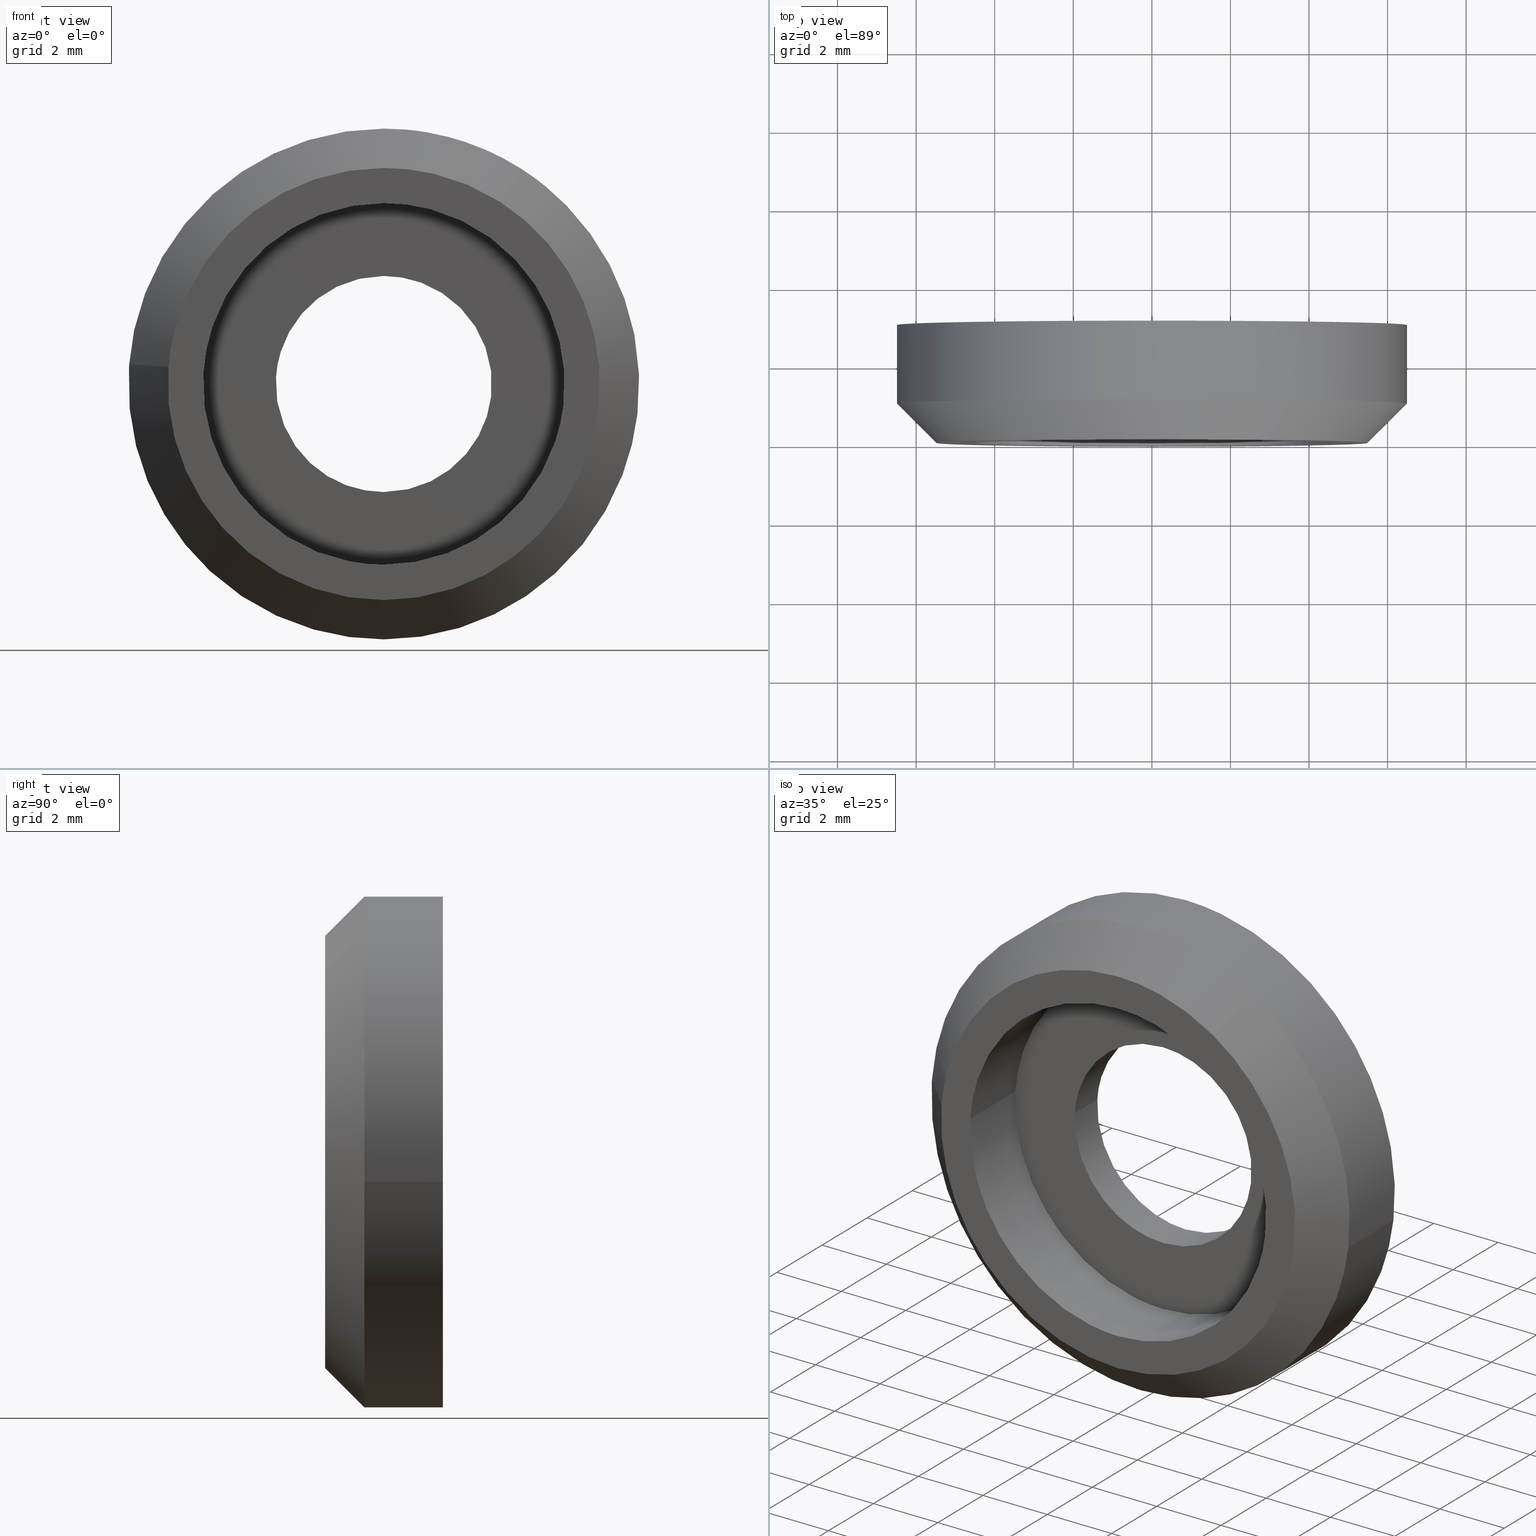
[diagram: canonical four-view strip — front | top / right | iso, engineering-drawing reading convention]
A machine part, canonical four-view strip (front | top / right | iso — engineering-drawing reading convention). The complete STEP part file that produces these views, byte-faithful:
ISO-10303-21;
HEADER;
/****************************************************************
 * Generated by software with PDE/Lib inside                    *
 * PDElib Version 4.4.1-0003, patched  Thursday August 19 11:58 *
 * International Technegroup Inc. (www.iti-oh.com)              *
 ****************************************************************/
FILE_DESCRIPTION((''),'2;1');
FILE_NAME('','2005-10-12T11:50:00',(''),(''),'','CADfix','');
FILE_SCHEMA(('AUTOMOTIVE_DESIGN'));
ENDSEC;
DATA;
#5=APPLICATION_CONTEXT('automotive design');
#6=APPLICATION_PROTOCOL_DEFINITION('Draft International Standard','automotive_design',1998,#5);
#7=PRODUCT_CONTEXT('None',#5,'mechanical');
#8=PRODUCT('facing ring','','None',(#7));
#9=PRODUCT_RELATED_PRODUCT_CATEGORY('part','description',(#8));
#10=PRODUCT_DEFINITION_FORMATION('None','None',#8);
#11=PRODUCT_DEFINITION_CONTEXT('part definition',#5,'design');
#12=PRODUCT_DEFINITION('None','None',#10,#11);
#18=(NAMED_UNIT(*)PLANE_ANGLE_UNIT()SI_UNIT($,.RADIAN.));
#19=DIMENSIONAL_EXPONENTS(0.0,0.0,0.0,0.0,0.0,0.0,0.0);
#20=PLANE_ANGLE_MEASURE_WITH_UNIT(PLANE_ANGLE_MEASURE(0.017453292500000),#18);
#24=(CONVERSION_BASED_UNIT('DEGREE',#20)NAMED_UNIT(#19)PLANE_ANGLE_UNIT());
#28=(NAMED_UNIT(*)SI_UNIT($,.STERADIAN.)SOLID_ANGLE_UNIT());
#32=(LENGTH_UNIT()NAMED_UNIT(*)SI_UNIT(.MILLI.,.METRE.));
#34=UNCERTAINTY_MEASURE_WITH_UNIT(LENGTH_MEASURE(0.001000000000000),#32,'DISTANCE_ACCURACY_VALUE','');
#36=(GEOMETRIC_REPRESENTATION_CONTEXT(3)GLOBAL_UNCERTAINTY_ASSIGNED_CONTEXT((#34))GLOBAL_UNIT_ASSIGNED_CONTEXT((#24,#28,#32))REPRESENTATION_CONTEXT('None','None'));
#37=AXIS2_PLACEMENT_3D('',#38,#39,#40);
#38=CARTESIAN_POINT('',(0.0,0.0,0.0));
#39=DIRECTION('',(0.0,0.0,1.0));
#40=DIRECTION('',(1.0,0.0,0.0));
#41=ADVANCED_BREP_SHAPE_REPRESENTATION('',(#37,#815),#36);
#42=PRODUCT_DEFINITION_SHAPE('','',#12);
#43=SHAPE_DEFINITION_REPRESENTATION(#42,#41);
#44=CARTESIAN_POINT('',(4.567843821272867,0.050000000000000,-0.542957479421089));
#45=CARTESIAN_POINT('',(4.583383031063587,0.050000000000000,-0.412227751734697));
#46=CARTESIAN_POINT('',(4.591420072740588,0.050000000000000,-0.280823281860342));
#47=CARTESIAN_POINT('',(4.872243354600929,0.050000000000000,4.310596790880246));
#48=CARTESIAN_POINT('',(0.280823281860343,0.050000000000000,4.591420072740587));
#49=CARTESIAN_POINT('',(-4.310596790880244,0.050000000000000,4.872243354600929));
#50=CARTESIAN_POINT('',(-4.591420072740586,0.050000000000000,0.280823281860342));
#51=CARTESIAN_POINT('',(4.567843821272867,-2.051250000000001,-0.542957479421089));
#52=CARTESIAN_POINT('',(4.583383031063587,-2.051250000000000,-0.412227751734697));
#53=CARTESIAN_POINT('',(4.591420072740588,-2.051250000000000,-0.280823281860342));
#54=CARTESIAN_POINT('',(4.872243354600929,-2.051250000000001,4.310596790880246));
#55=CARTESIAN_POINT('',(0.280823281860343,-2.051250000000000,4.591420072740587));
#56=CARTESIAN_POINT('',(-4.310596790880244,-2.051250000000001,4.872243354600929));
#57=CARTESIAN_POINT('',(-4.591420072740586,-2.051250000000000,0.280823281860342));
#65=(BOUNDED_SURFACE()B_SPLINE_SURFACE(2,1,((#44,#51),(#45,#52),(#46,#53),(#47,#54),(#48,#55),(#49,#56),(#50,#57)),.UNSPECIFIED.,.F.,.F.,.U.)B_SPLINE_SURFACE_WITH_KNOTS((3,2,2,3),(2,2),(0.0,0.304861181906598,7.926390729571546,15.547920277236489),(0.0,2.101250000000000),.UNSPECIFIED.)GEOMETRIC_REPRESENTATION_ITEM()RATIONAL_B_SPLINE_SURFACE(((0.977505800795127,0.977505800795127),(0.988284271247462,0.988284271247462),(1.0,1.0),(0.707106781186548,0.707106781186548),(1.0,1.0),(0.707106781186548,0.707106781186548),(1.0,1.0)))REPRESENTATION_ITEM('')SURFACE());
#66=CARTESIAN_POINT('',(4.567843924772339,-3.194357E-015,-0.542956608689565));
#67=VERTEX_POINT('',#66);
#68=CARTESIAN_POINT('',(4.898425E-016,0.0,4.600000000000000));
#69=VERTEX_POINT('',#68);
#70=CARTESIAN_POINT('',(4.567843924772339,-3.194357E-015,-0.542956608689565));
#71=CARTESIAN_POINT('',(4.600000000000001,0.0,-0.272430070462030));
#72=CARTESIAN_POINT('',(4.600000000000001,0.0,0.0));
#73=CARTESIAN_POINT('',(4.600000000000001,0.0,4.600000000000000));
#74=CARTESIAN_POINT('',(4.898425E-016,0.0,4.600000000000000));
#82=(BOUNDED_CURVE()B_SPLINE_CURVE(2,(#70,#71,#72,#73,#74),.UNSPECIFIED.,.F.,.U.)B_SPLINE_CURVE_WITH_KNOTS((3,2,3),(0.229562537947122,0.250000000000000,0.500000000000000),.UNSPECIFIED.)CURVE()GEOMETRIC_REPRESENTATION_ITEM()RATIONAL_B_SPLINE_CURVE((0.956026880476258,0.976056023819819,1.0,0.707106781186547,1.0))REPRESENTATION_ITEM(''));
#83=EDGE_CURVE('',#67,#69,#82,.T.);
#84=ORIENTED_EDGE('',*,*,#83,.F.);
#85=CARTESIAN_POINT('',(4.567843923526642,-2.0,-0.542956619169509));
#86=VERTEX_POINT('',#85);
#87=CARTESIAN_POINT('',(4.567843924772339,-3.194357E-015,-0.542956608689565));
#88=CARTESIAN_POINT('',(4.567843923526642,-2.0,-0.542956619169509));
#89=QUASI_UNIFORM_CURVE('',1,(#87,#88),.UNSPECIFIED.,.F.,.U.);
#90=EDGE_CURVE('',#67,#86,#89,.T.);
#91=ORIENTED_EDGE('',*,*,#90,.T.);
#92=CARTESIAN_POINT('',(4.898425E-016,-2.0,4.600000000000000));
#93=VERTEX_POINT('',#92);
#94=CARTESIAN_POINT('',(4.567843923526642,-2.000000000000000,-0.542956619169509));
#95=CARTESIAN_POINT('',(4.600000000000000,-2.000000000000000,-0.272430081052766));
#96=CARTESIAN_POINT('',(4.600000000000001,-2.0,0.0));
#97=CARTESIAN_POINT('',(4.600000000000001,-2.0,4.600000000000000));
#98=CARTESIAN_POINT('',(4.898425E-016,-2.0,4.600000000000000));
#106=(BOUNDED_CURVE()B_SPLINE_CURVE(2,(#94,#95,#96,#97,#98),.UNSPECIFIED.,.F.,.U.)B_SPLINE_CURVE_WITH_KNOTS((3,2,3),(0.229562537171638,0.250000000000000,0.500000000000000),.UNSPECIFIED.)CURVE()GEOMETRIC_REPRESENTATION_ITEM()RATIONAL_B_SPLINE_CURVE((0.956026878956277,0.976056022911283,1.0,0.707106781186547,1.0))REPRESENTATION_ITEM(''));
#107=EDGE_CURVE('',#86,#93,#106,.T.);
#108=ORIENTED_EDGE('',*,*,#107,.T.);
#109=CARTESIAN_POINT('',(-4.591420351980636,-2.0,0.280818716251385));
#110=VERTEX_POINT('',#109);
#111=CARTESIAN_POINT('',(4.898425E-016,-2.0,4.600000000000000));
#112=CARTESIAN_POINT('',(-4.327252218730626,-2.0,4.600000000000000));
#113=CARTESIAN_POINT('',(-4.591420351980636,-2.000000000000000,0.280818716251385));
#121=(BOUNDED_CURVE()B_SPLINE_CURVE(2,(#111,#112,#113),.UNSPECIFIED.,.F.,.U.)B_SPLINE_CURVE_WITH_KNOTS((3,3),(0.500000000000000,0.739333133818792),.UNSPECIFIED.)CURVE()GEOMETRIC_REPRESENTATION_ITEM()RATIONAL_B_SPLINE_CURVE((1.0,0.719603792268414,0.976072409395271))REPRESENTATION_ITEM(''));
#122=EDGE_CURVE('',#93,#110,#121,.T.);
#123=ORIENTED_EDGE('',*,*,#122,.T.);
#124=CARTESIAN_POINT('',(-4.591420355385287,-1.392636E-014,0.280818660584011));
#125=VERTEX_POINT('',#124);
#126=CARTESIAN_POINT('',(-4.591420355385287,-1.392636E-014,0.280818660584011));
#127=CARTESIAN_POINT('',(-4.591420351980636,-2.0,0.280818716251385));
#128=QUASI_UNIFORM_CURVE('',1,(#126,#127),.UNSPECIFIED.,.F.,.U.);
#129=EDGE_CURVE('',#125,#110,#128,.T.);
#130=ORIENTED_EDGE('',*,*,#129,.F.);
#131=CARTESIAN_POINT('',(4.898425E-016,0.0,4.600000000000000));
#132=CARTESIAN_POINT('',(-4.327252271293201,0.0,4.599999999999999));
#133=CARTESIAN_POINT('',(-4.591420355385287,-1.392636E-014,0.280818660584011));
#141=(BOUNDED_CURVE()B_SPLINE_CURVE(2,(#131,#132,#133),.UNSPECIFIED.,.F.,.U.)B_SPLINE_CURVE_WITH_KNOTS((3,3),(0.500000000000000,0.739333135910787),.UNSPECIFIED.)CURVE()GEOMETRIC_REPRESENTATION_ITEM()RATIONAL_B_SPLINE_CURVE((1.0,0.719603789817489,0.976072413878821))REPRESENTATION_ITEM(''));
#142=EDGE_CURVE('',#69,#125,#141,.T.);
#143=ORIENTED_EDGE('',*,*,#142,.F.);
#144=EDGE_LOOP('',(#84,#91,#108,#123,#130,#143));
#145=FACE_OUTER_BOUND('',#144,.T.);
#146=ADVANCED_FACE('',(#145),#65,.F.);
#147=CARTESIAN_POINT('',(-4.591420072740586,0.050000000000000,0.280823281860342));
#148=CARTESIAN_POINT('',(-4.872243354600928,0.050000000000000,-4.310596790880246));
#149=CARTESIAN_POINT('',(-0.280823281860342,0.050000000000000,-4.591420072740587));
#150=CARTESIAN_POINT('',(4.055100057861706,0.050000000000000,-4.856616504969625));
#151=CARTESIAN_POINT('',(4.567843821272867,0.050000000000000,-0.542957479421089));
#152=CARTESIAN_POINT('',(-4.591420072740586,-2.051250000000000,0.280823281860342));
#153=CARTESIAN_POINT('',(-4.872243354600928,-2.051250000000001,-4.310596790880246));
#154=CARTESIAN_POINT('',(-0.280823281860342,-2.051250000000000,-4.591420072740587));
#155=CARTESIAN_POINT('',(4.055100057861706,-2.051250000000001,-4.856616504969625));
#156=CARTESIAN_POINT('',(4.567843821272867,-2.051250000000001,-0.542957479421089));
#164=(BOUNDED_SURFACE()B_SPLINE_SURFACE(2,1,((#147,#152),(#148,#153),(#149,#154),(#150,#155),(#151,#156)),.UNSPECIFIED.,.F.,.F.,.U.)B_SPLINE_SURFACE_WITH_KNOTS((3,2,3),(2,2),(0.0,7.621529547664948,14.938197913423300),(0.0,2.101250000000000),.UNSPECIFIED.)GEOMETRIC_REPRESENTATION_ITEM()RATIONAL_B_SPLINE_SURFACE(((1.0,1.0),(0.707106781186548,0.707106781186548),(1.0,1.0),(0.718822509939086,0.718822509939086),(0.977505800795127,0.977505800795127)))REPRESENTATION_ITEM('')SURFACE());
#165=CARTESIAN_POINT('',(4.898425E-016,0.0,-4.600000000000000));
#166=VERTEX_POINT('',#165);
#167=CARTESIAN_POINT('',(4.898425E-016,0.0,-4.600000000000000));
#168=CARTESIAN_POINT('',(4.085604387953177,0.0,-4.599999999999999));
#169=CARTESIAN_POINT('',(4.567843924772339,-3.194357E-015,-0.542956608689565));
#177=(BOUNDED_CURVE()B_SPLINE_CURVE(2,(#167,#168,#169),.UNSPECIFIED.,.F.,.U.)B_SPLINE_CURVE_WITH_KNOTS((3,3),(0.0,0.229562537947122),.UNSPECIFIED.)CURVE()GEOMETRIC_REPRESENTATION_ITEM()RATIONAL_B_SPLINE_CURVE((1.0,0.731050757366728,0.956026880476258))REPRESENTATION_ITEM(''));
#178=EDGE_CURVE('',#166,#67,#177,.T.);
#179=ORIENTED_EDGE('',*,*,#178,.F.);
#180=CARTESIAN_POINT('',(-4.591420355385287,-1.392636E-014,0.280818660584011));
#181=CARTESIAN_POINT('',(-4.599999999999999,0.0,0.140540394056717));
#182=CARTESIAN_POINT('',(-4.599999999999999,0.0,0.0));
#183=CARTESIAN_POINT('',(-4.600000000000000,0.0,-4.600000000000000));
#184=CARTESIAN_POINT('',(4.898425E-016,0.0,-4.600000000000000));
#192=(BOUNDED_CURVE()B_SPLINE_CURVE(2,(#180,#181,#182,#183,#184),.UNSPECIFIED.,.F.,.U.)B_SPLINE_CURVE_WITH_KNOTS((3,2,3),(0.739333135910787,0.750000000000000,1.0),.UNSPECIFIED.)CURVE()GEOMETRIC_REPRESENTATION_ITEM()RATIONAL_B_SPLINE_CURVE((0.976072413878821,0.987502991369059,1.0,0.707106781186547,1.0))REPRESENTATION_ITEM(''));
#193=EDGE_CURVE('',#125,#166,#192,.T.);
#194=ORIENTED_EDGE('',*,*,#193,.F.);
#195=ORIENTED_EDGE('',*,*,#129,.T.);
#196=CARTESIAN_POINT('',(4.898425E-016,-2.0,-4.600000000000000));
#197=VERTEX_POINT('',#196);
#198=CARTESIAN_POINT('',(-4.591420351980636,-2.000000000000000,0.280818716251385));
#199=CARTESIAN_POINT('',(-4.599999999999999,-2.000000000000000,0.140540421968442));
#200=CARTESIAN_POINT('',(-4.599999999999999,-2.0,0.0));
#201=CARTESIAN_POINT('',(-4.600000000000000,-2.0,-4.600000000000000));
#202=CARTESIAN_POINT('',(4.898425E-016,-2.0,-4.600000000000000));
#210=(BOUNDED_CURVE()B_SPLINE_CURVE(2,(#198,#199,#200,#201,#202),.UNSPECIFIED.,.F.,.U.)B_SPLINE_CURVE_WITH_KNOTS((3,2,3),(0.739333133818792,0.750000000000000,1.0),.UNSPECIFIED.)CURVE()GEOMETRIC_REPRESENTATION_ITEM()RATIONAL_B_SPLINE_CURVE((0.976072409395271,0.987502988918134,1.0,0.707106781186547,1.0))REPRESENTATION_ITEM(''));
#211=EDGE_CURVE('',#110,#197,#210,.T.);
#212=ORIENTED_EDGE('',*,*,#211,.T.);
#213=CARTESIAN_POINT('',(4.898425E-016,-2.0,-4.600000000000000));
#214=CARTESIAN_POINT('',(4.085604369074106,-1.999999999999999,-4.600000000000000));
#215=CARTESIAN_POINT('',(4.567843923526642,-2.000000000000000,-0.542956619169509));
#223=(BOUNDED_CURVE()B_SPLINE_CURVE(2,(#213,#214,#215),.UNSPECIFIED.,.F.,.U.)B_SPLINE_CURVE_WITH_KNOTS((3,3),(0.0,0.229562537171638),.UNSPECIFIED.)CURVE()GEOMETRIC_REPRESENTATION_ITEM()RATIONAL_B_SPLINE_CURVE((1.0,0.731050758275264,0.956026878956277))REPRESENTATION_ITEM(''));
#224=EDGE_CURVE('',#197,#86,#223,.T.);
#225=ORIENTED_EDGE('',*,*,#224,.T.);
#226=ORIENTED_EDGE('',*,*,#90,.F.);
#227=EDGE_LOOP('',(#179,#194,#195,#212,#225,#226));
#228=FACE_OUTER_BOUND('',#227,.T.);
#229=ADVANCED_FACE('',(#228),#164,.F.);
#230=CARTESIAN_POINT('',(2.944733094117965,-2.025000000000000,4.615644267532583));
#231=CARTESIAN_POINT('',(5.716039175441344,-2.025000000000000,2.847579776729467));
#232=CARTESIAN_POINT('',(5.458122402188874,-2.025000000000000,-0.429563549109954));
#233=CARTESIAN_POINT('',(5.028558853078919,-2.025000000000000,-5.887685951298828));
#234=CARTESIAN_POINT('',(-0.429563549109954,-2.025000000000000,-5.458122402188873));
#235=CARTESIAN_POINT('',(-5.887685951298825,-2.025000000000000,-5.028558853078919));
#236=CARTESIAN_POINT('',(-5.458122402188872,-2.025000000000000,0.429563549109954));
#237=CARTESIAN_POINT('',(3.509812583982383,-0.974375000000000,5.501363218870742));
#238=CARTESIAN_POINT('',(6.812918382509483,-0.974375000000000,3.394016032971731));
#239=CARTESIAN_POINT('',(6.505508675942241,-0.974375000000000,-0.511994636559022));
#240=CARTESIAN_POINT('',(5.993514039383219,-0.974375000000000,-7.017503312501262));
#241=CARTESIAN_POINT('',(-0.511994636559021,-0.974375000000000,-6.505508675942240));
#242=CARTESIAN_POINT('',(-7.017503312501262,-0.974375000000000,-5.993514039383218));
#243=CARTESIAN_POINT('',(-6.505508675942239,-0.974375000000000,0.511994636559022));
#251=(BOUNDED_SURFACE()B_SPLINE_SURFACE(2,1,((#230,#237),(#231,#238),(#232,#239),(#233,#240),(#234,#241),(#235,#242),(#236,#243)),.UNSPECIFIED.,.F.,.F.,.U.)B_SPLINE_SURFACE_WITH_KNOTS((3,2,2,3),(2,2),(0.0,7.352166468053720,18.164175979897429,28.976185491741131),(0.0,1.0),.UNSPECIFIED.)GEOMETRIC_REPRESENTATION_ITEM()RATIONAL_B_SPLINE_SURFACE(((0.872532871172386,0.872532871172386),(0.800832611206852,0.800832611206852),(1.0,1.0),(0.707106781186548,0.707106781186548),(1.0,1.0),(0.707106781186548,0.707106781186548),(1.0,1.0)))REPRESENTATION_ITEM('')SURFACE());
#252=CARTESIAN_POINT('',(6.454562409925407,-0.999999999999979,-0.767218415029761));
#253=VERTEX_POINT('',#252);
#254=CARTESIAN_POINT('',(3.496030157401222,-0.999999999999946,5.479760317618087));
#255=VERTEX_POINT('',#254);
#256=CARTESIAN_POINT('',(6.454562409925407,-0.999999999999979,-0.767218415029761));
#257=CARTESIAN_POINT('',(6.500000000000002,-1.0,-0.384954700891566));
#258=CARTESIAN_POINT('',(6.500000000000001,-1.0,0.0));
#259=CARTESIAN_POINT('',(6.500000000000002,-1.0,3.563258764094281));
#260=CARTESIAN_POINT('',(3.496030157401222,-0.999999999999946,5.479760317618087));
#268=(BOUNDED_CURVE()B_SPLINE_CURVE(2,(#256,#257,#258,#259,#260),.UNSPECIFIED.,.F.,.U.)B_SPLINE_CURVE_WITH_KNOTS((3,2,3),(0.229562581136241,0.250000000000000,0.407950112627521),.UNSPECIFIED.)CURVE()GEOMETRIC_REPRESENTATION_ITEM()RATIONAL_B_SPLINE_CURVE((0.956026965128767,0.976056074419019,1.0,0.814949932402312,0.863729296954906))REPRESENTATION_ITEM(''));
#269=EDGE_CURVE('',#253,#255,#268,.T.);
#270=ORIENTED_EDGE('',*,*,#269,.T.);
#271=CARTESIAN_POINT('',(2.958179363957607,-1.999999999999788,4.636720268752224));
#272=VERTEX_POINT('',#271);
#273=CARTESIAN_POINT('',(2.958179363957607,-1.999999999999788,4.636720268752224));
#274=CARTESIAN_POINT('',(3.496030157401222,-0.999999999999946,5.479760317618087));
#275=QUASI_UNIFORM_CURVE('',1,(#273,#274),.UNSPECIFIED.,.F.,.U.);
#276=EDGE_CURVE('',#272,#255,#275,.T.);
#277=ORIENTED_EDGE('',*,*,#276,.F.);
#278=CARTESIAN_POINT('',(4.898425E-016,-2.0,-5.500000000000000));
#279=VERTEX_POINT('',#278);
#280=CARTESIAN_POINT('',(4.898425E-016,-2.0,-5.500000000000000));
#281=CARTESIAN_POINT('',(5.500000000000001,-2.000000000000000,-5.500000000000001));
#282=CARTESIAN_POINT('',(5.500000000000001,-2.0,0.0));
#283=CARTESIAN_POINT('',(5.500000000000000,-2.000000000000000,3.015065108075712));
#284=CARTESIAN_POINT('',(2.958179363957608,-1.999999999999788,4.636720268752226));
#292=(BOUNDED_CURVE()B_SPLINE_CURVE(2,(#280,#281,#282,#283,#284),.UNSPECIFIED.,.F.,.U.)B_SPLINE_CURVE_WITH_KNOTS((3,2,3),(0.0,0.250000000000000,0.407950112627348),.UNSPECIFIED.)CURVE()GEOMETRIC_REPRESENTATION_ITEM()RATIONAL_B_SPLINE_CURVE((1.0,0.707106781186548,1.0,0.814949932402515,0.863729296954799))REPRESENTATION_ITEM(''));
#293=EDGE_CURVE('',#279,#272,#292,.T.);
#294=ORIENTED_EDGE('',*,*,#293,.F.);
#295=CARTESIAN_POINT('',(-5.483045335532477,-1.999999999999305,0.431525026508502));
#296=VERTEX_POINT('',#295);
#297=CARTESIAN_POINT('',(-5.483045335532477,-1.999999999999305,0.431525026508502));
#298=CARTESIAN_POINT('',(-5.499999999999999,-2.000000000000000,0.216095588547506));
#299=CARTESIAN_POINT('',(-5.499999999999999,-2.0,0.0));
#300=CARTESIAN_POINT('',(-5.499999999999999,-2.000000000000000,-5.500000000000001));
#301=CARTESIAN_POINT('',(4.898425E-016,-2.0,-5.500000000000000));
#309=(BOUNDED_CURVE()B_SPLINE_CURVE(2,(#297,#298,#299,#300,#301),.UNSPECIFIED.,.F.,.U.)B_SPLINE_CURVE_WITH_KNOTS((3,2,3),(0.736331300632436,0.750000000000000,1.0),.UNSPECIFIED.)CURVE()GEOMETRIC_REPRESENTATION_ITEM()RATIONAL_B_SPLINE_CURVE((0.969723356171124,0.983986122580963,1.0,0.707106781186548,1.0))REPRESENTATION_ITEM(''));
#310=EDGE_CURVE('',#296,#279,#309,.T.);
#311=ORIENTED_EDGE('',*,*,#310,.F.);
#312=CARTESIAN_POINT('',(-6.479962669265479,-0.999999999999622,0.509984122233905));
#313=VERTEX_POINT('',#312);
#314=CARTESIAN_POINT('',(-5.483045335532477,-1.999999999999305,0.431525026508502));
#315=CARTESIAN_POINT('',(-6.479962669265479,-0.999999999999622,0.509984122233905));
#316=QUASI_UNIFORM_CURVE('',1,(#314,#315),.UNSPECIFIED.,.F.,.U.);
#317=EDGE_CURVE('',#296,#313,#316,.T.);
#318=ORIENTED_EDGE('',*,*,#317,.T.);
#319=CARTESIAN_POINT('',(-6.487876331741011,-0.999999999999986,0.396813185301808));
#320=VERTEX_POINT('',#319);
#321=CARTESIAN_POINT('',(-6.479962669265479,-0.999999999999622,0.509984122233905));
#322=CARTESIAN_POINT('',(-6.484413324530644,-1.0,0.453433185220409));
#323=CARTESIAN_POINT('',(-6.487876331741011,-0.999999999999986,0.396813185301808));
#331=(BOUNDED_CURVE()B_SPLINE_CURVE(2,(#321,#322,#323),.UNSPECIFIED.,.F.,.U.)B_SPLINE_CURVE_WITH_KNOTS((3,3),(0.736331300632614,0.739333023987528),.UNSPECIFIED.)CURVE()GEOMETRIC_REPRESENTATION_ITEM()RATIONAL_B_SPLINE_CURVE((0.969723356171498,0.972855539994323,0.976072174005725))REPRESENTATION_ITEM(''));
#332=EDGE_CURVE('',#313,#320,#331,.T.);
#333=ORIENTED_EDGE('',*,*,#332,.T.);
#334=CARTESIAN_POINT('',(4.898425E-016,-1.0,-6.500000000000000));
#335=VERTEX_POINT('',#334);
#336=CARTESIAN_POINT('',(-6.487876331741011,-0.999999999999986,0.396813185301808));
#337=CARTESIAN_POINT('',(-6.499999999999999,-1.0,0.198591797348603));
#338=CARTESIAN_POINT('',(-6.499999999999999,-1.0,0.0));
#339=CARTESIAN_POINT('',(-6.499999999999998,-1.0,-6.500000000000000));
#340=CARTESIAN_POINT('',(4.898425E-016,-1.0,-6.500000000000000));
#348=(BOUNDED_CURVE()B_SPLINE_CURVE(2,(#336,#337,#338,#339,#340),.UNSPECIFIED.,.F.,.U.)B_SPLINE_CURVE_WITH_KNOTS((3,2,3),(0.739333023987528,0.750000000000000,1.0),.UNSPECIFIED.)CURVE()GEOMETRIC_REPRESENTATION_ITEM()RATIONAL_B_SPLINE_CURVE((0.976072174005725,0.987502860242805,1.0,0.707106781186547,1.0))REPRESENTATION_ITEM(''));
#349=EDGE_CURVE('',#320,#335,#348,.T.);
#350=ORIENTED_EDGE('',*,*,#349,.T.);
#351=CARTESIAN_POINT('',(4.898425E-016,-1.0,-6.500000000000000));
#352=CARTESIAN_POINT('',(5.773138120873576,-1.0,-6.500000000000000));
#353=CARTESIAN_POINT('',(6.454562409925407,-0.999999999999979,-0.767218415029761));
#361=(BOUNDED_CURVE()B_SPLINE_CURVE(2,(#351,#352,#353),.UNSPECIFIED.,.F.,.U.)B_SPLINE_CURVE_WITH_KNOTS((3,3),(0.0,0.229562581136241),.UNSPECIFIED.)CURVE()GEOMETRIC_REPRESENTATION_ITEM()RATIONAL_B_SPLINE_CURVE((1.0,0.731050706767529,0.956026965128767))REPRESENTATION_ITEM(''));
#362=EDGE_CURVE('',#335,#253,#361,.T.);
#363=ORIENTED_EDGE('',*,*,#362,.T.);
#364=EDGE_LOOP('',(#270,#277,#294,#311,#318,#333,#350,#363));
#365=FACE_OUTER_BOUND('',#364,.T.);
#366=ADVANCED_FACE('',(#365),#251,.T.);
#367=CARTESIAN_POINT('',(-5.458122402188872,-2.025000000000000,0.429563549109954));
#368=CARTESIAN_POINT('',(-5.028558853078918,-2.025000000000000,5.887685951298828));
#369=CARTESIAN_POINT('',(0.429563549109955,-2.025000000000000,5.458122402188873));
#370=CARTESIAN_POINT('',(1.792321263180675,-2.024999999999999,5.350871044103091));
#371=CARTESIAN_POINT('',(2.944733094117965,-2.025000000000000,4.615644267532583));
#372=CARTESIAN_POINT('',(-6.505508675942239,-0.974375000000000,0.511994636559022));
#373=CARTESIAN_POINT('',(-5.993514039383216,-0.974375000000000,7.017503312501262));
#374=CARTESIAN_POINT('',(0.511994636559022,-0.974375000000000,6.505508675942240));
#375=CARTESIAN_POINT('',(2.136258711058153,-0.974375000000000,6.377676320945247));
#376=CARTESIAN_POINT('',(3.509812583982383,-0.974375000000000,5.501363218870742));
#384=(BOUNDED_SURFACE()B_SPLINE_SURFACE(2,1,((#367,#372),(#368,#373),(#369,#374),(#370,#375),(#371,#376)),.UNSPECIFIED.,.F.,.F.,.U.)B_SPLINE_SURFACE_WITH_KNOTS((3,2,3),(2,2),(0.0,10.812009511843710,14.271852555633700),(0.0,1.0),.UNSPECIFIED.)GEOMETRIC_REPRESENTATION_ITEM()RATIONAL_B_SPLINE_SURFACE(((1.0,1.0),(0.707106781186548,0.707106781186548),(1.0,1.0),(0.906274169979695,0.906274169979695),(0.872532871172386,0.872532871172386)))REPRESENTATION_ITEM('')SURFACE());
#385=CARTESIAN_POINT('',(4.898425E-016,-1.0,6.500000000000000));
#386=VERTEX_POINT('',#385);
#387=CARTESIAN_POINT('',(3.496030157401223,-0.999999999999946,5.479760317618088));
#388=CARTESIAN_POINT('',(1.896882359966342,-1.0,6.500000000000000));
#389=CARTESIAN_POINT('',(4.898425E-016,-1.0,6.500000000000000));
#397=(BOUNDED_CURVE()B_SPLINE_CURVE(2,(#387,#388,#389),.UNSPECIFIED.,.F.,.U.)B_SPLINE_CURVE_WITH_KNOTS((3,3),(0.407950112627522,0.500000000000000),.UNSPECIFIED.)CURVE()GEOMETRIC_REPRESENTATION_ITEM()RATIONAL_B_SPLINE_CURVE((0.863729296954906,0.892156848784236,1.0))REPRESENTATION_ITEM(''));
#398=EDGE_CURVE('',#255,#386,#397,.T.);
#399=ORIENTED_EDGE('',*,*,#398,.T.);
#400=CARTESIAN_POINT('',(4.898425E-016,-1.0,6.500000000000000));
#401=CARTESIAN_POINT('',(-6.008538195773006,-1.0,6.500000000000000));
#402=CARTESIAN_POINT('',(-6.479962669265479,-0.999999999999622,0.509984122233905));
#410=(BOUNDED_CURVE()B_SPLINE_CURVE(2,(#400,#401,#402),.UNSPECIFIED.,.F.,.U.)B_SPLINE_CURVE_WITH_KNOTS((3,3),(0.500000000000000,0.736331300632615),.UNSPECIFIED.)CURVE()GEOMETRIC_REPRESENTATION_ITEM()RATIONAL_B_SPLINE_CURVE((1.0,0.723120658605375,0.969723356171499))REPRESENTATION_ITEM(''));
#411=EDGE_CURVE('',#386,#313,#410,.T.);
#412=ORIENTED_EDGE('',*,*,#411,.T.);
#413=ORIENTED_EDGE('',*,*,#317,.F.);
#414=CARTESIAN_POINT('',(4.898425E-016,-2.0,5.500000000000000));
#415=VERTEX_POINT('',#414);
#416=CARTESIAN_POINT('',(4.898425E-016,-2.0,5.500000000000000));
#417=CARTESIAN_POINT('',(-5.084147704110269,-2.000000000000000,5.499999999999999));
#418=CARTESIAN_POINT('',(-5.483045335532477,-1.999999999999304,0.431525026508502));
#426=(BOUNDED_CURVE()B_SPLINE_CURVE(2,(#416,#417,#418),.UNSPECIFIED.,.F.,.U.)B_SPLINE_CURVE_WITH_KNOTS((3,3),(0.500000000000000,0.736331300632435),.UNSPECIFIED.)CURVE()GEOMETRIC_REPRESENTATION_ITEM()RATIONAL_B_SPLINE_CURVE((1.0,0.723120658605585,0.969723356171123))REPRESENTATION_ITEM(''));
#427=EDGE_CURVE('',#415,#296,#426,.T.);
#428=ORIENTED_EDGE('',*,*,#427,.F.);
#429=CARTESIAN_POINT('',(2.958179363957608,-1.999999999999788,4.636720268752226));
#430=CARTESIAN_POINT('',(1.605054304590299,-2.0,5.500000000000001));
#431=CARTESIAN_POINT('',(4.898425E-016,-2.0,5.500000000000000));
#439=(BOUNDED_CURVE()B_SPLINE_CURVE(2,(#429,#430,#431),.UNSPECIFIED.,.F.,.U.)B_SPLINE_CURVE_WITH_KNOTS((3,3),(0.407950112627348,0.500000000000000),.UNSPECIFIED.)CURVE()GEOMETRIC_REPRESENTATION_ITEM()RATIONAL_B_SPLINE_CURVE((0.863729296954799,0.892156848784032,1.0))REPRESENTATION_ITEM(''));
#440=EDGE_CURVE('',#272,#415,#439,.T.);
#441=ORIENTED_EDGE('',*,*,#440,.F.);
#442=ORIENTED_EDGE('',*,*,#276,.T.);
#443=EDGE_LOOP('',(#399,#412,#413,#428,#441,#442));
#444=FACE_OUTER_BOUND('',#443,.T.);
#445=ADVANCED_FACE('',(#444),#384,.T.);
#446=CARTESIAN_POINT('',(6.454561921363832,1.050000000000000,-0.767222525268930));
#447=CARTESIAN_POINT('',(6.476519500415937,1.050000000000000,-0.582495736146855));
#448=CARTESIAN_POINT('',(6.487876189742134,1.050000000000000,-0.396815506976570));
#449=CARTESIAN_POINT('',(6.884691696718705,1.050000000000000,6.091060682765563));
#450=CARTESIAN_POINT('',(0.396815506976571,1.050000000000000,6.487876189742133));
#451=CARTESIAN_POINT('',(-6.091060682765561,1.050000000000000,6.884691696718703));
#452=CARTESIAN_POINT('',(-6.487876189742132,1.050000000000000,0.396815506976570));
#453=CARTESIAN_POINT('',(6.454561921363832,-1.051250000000000,-0.767222525268930));
#454=CARTESIAN_POINT('',(6.476519500415937,-1.051250000000000,-0.582495736146855));
#455=CARTESIAN_POINT('',(6.487876189742134,-1.051250000000000,-0.396815506976570));
#456=CARTESIAN_POINT('',(6.884691696718705,-1.051250000000000,6.091060682765563));
#457=CARTESIAN_POINT('',(0.396815506976571,-1.051250000000000,6.487876189742133));
#458=CARTESIAN_POINT('',(-6.091060682765561,-1.051250000000000,6.884691696718703));
#459=CARTESIAN_POINT('',(-6.487876189742132,-1.051250000000000,0.396815506976570));
#467=(BOUNDED_SURFACE()B_SPLINE_SURFACE(2,1,((#446,#453),(#447,#454),(#448,#455),(#449,#456),(#450,#457),(#451,#458),(#452,#459)),.UNSPECIFIED.,.F.,.F.,.U.)B_SPLINE_SURFACE_WITH_KNOTS((3,2,2,3),(2,2),(0.0,0.430782104868019,11.200334726568490,21.969887348268959),(0.0,2.101250000000000),.UNSPECIFIED.)GEOMETRIC_REPRESENTATION_ITEM()RATIONAL_B_SPLINE_SURFACE(((0.977505800795127,0.977505800795127),(0.988284271247462,0.988284271247462),(1.0,1.0),(0.707106781186548,0.707106781186548),(1.0,1.0),(0.707106781186548,0.707106781186548),(1.0,1.0)))REPRESENTATION_ITEM('')SURFACE());
#468=ORIENTED_EDGE('',*,*,#269,.F.);
#469=CARTESIAN_POINT('',(6.454562403899240,1.000000000000000,-0.767218465727815));
#470=VERTEX_POINT('',#469);
#471=CARTESIAN_POINT('',(6.454562403899240,1.000000000000000,-0.767218465727815));
#472=CARTESIAN_POINT('',(6.454562409925407,-0.999999999999979,-0.767218415029761));
#473=QUASI_UNIFORM_CURVE('',1,(#471,#472),.UNSPECIFIED.,.F.,.U.);
#474=EDGE_CURVE('',#470,#253,#473,.T.);
#475=ORIENTED_EDGE('',*,*,#474,.F.);
#476=CARTESIAN_POINT('',(4.898425E-016,1.0,6.500000000000000));
#477=VERTEX_POINT('',#476);
#478=CARTESIAN_POINT('',(6.454562403899240,1.000000000000000,-0.767218465727815));
#479=CARTESIAN_POINT('',(6.500000000000001,1.0,-0.384954726508574));
#480=CARTESIAN_POINT('',(6.500000000000001,1.0,0.0));
#481=CARTESIAN_POINT('',(6.500000000000000,1.0,6.500000000000000));
#482=CARTESIAN_POINT('',(4.898425E-016,1.0,6.500000000000000));
#490=(BOUNDED_CURVE()B_SPLINE_CURVE(2,(#478,#479,#480,#481,#482),.UNSPECIFIED.,.F.,.U.)B_SPLINE_CURVE_WITH_KNOTS((3,2,3),(0.229562579808786,0.250000000000000,0.500000000000000),.UNSPECIFIED.)CURVE()GEOMETRIC_REPRESENTATION_ITEM()RATIONAL_B_SPLINE_CURVE((0.956026962526900,0.976056072863809,1.0,0.707106781186547,1.0))REPRESENTATION_ITEM(''));
#491=EDGE_CURVE('',#470,#477,#490,.T.);
#492=ORIENTED_EDGE('',*,*,#491,.T.);
#493=CARTESIAN_POINT('',(-6.487876329990308,1.0,0.396813213925880));
#494=VERTEX_POINT('',#493);
#495=CARTESIAN_POINT('',(4.898425E-016,1.0,6.500000000000000));
#496=CARTESIAN_POINT('',(-6.114591600043400,1.0,6.500000000000000));
#497=CARTESIAN_POINT('',(-6.487876329990309,1.0,0.396813213925880));
#505=(BOUNDED_CURVE()B_SPLINE_CURVE(2,(#495,#496,#497),.UNSPECIFIED.,.F.,.U.)B_SPLINE_CURVE_WITH_KNOTS((3,3),(0.500000000000000,0.739333023226263),.UNSPECIFIED.)CURVE()GEOMETRIC_REPRESENTATION_ITEM()RATIONAL_B_SPLINE_CURVE((1.0,0.719603921835620,0.976072172374189))REPRESENTATION_ITEM(''));
#506=EDGE_CURVE('',#477,#494,#505,.T.);
#507=ORIENTED_EDGE('',*,*,#506,.T.);
#508=CARTESIAN_POINT('',(-6.487876329990308,1.0,0.396813213925880));
#509=CARTESIAN_POINT('',(-6.487876331741011,-0.999999999999986,0.396813185301808));
#510=QUASI_UNIFORM_CURVE('',1,(#508,#509),.UNSPECIFIED.,.F.,.U.);
#511=EDGE_CURVE('',#494,#320,#510,.T.);
#512=ORIENTED_EDGE('',*,*,#511,.T.);
#513=ORIENTED_EDGE('',*,*,#332,.F.);
#514=ORIENTED_EDGE('',*,*,#411,.F.);
#515=ORIENTED_EDGE('',*,*,#398,.F.);
#516=EDGE_LOOP('',(#468,#475,#492,#507,#512,#513,#514,#515));
#517=FACE_OUTER_BOUND('',#516,.T.);
#518=ADVANCED_FACE('',(#517),#467,.T.);
#519=CARTESIAN_POINT('',(-6.487876189742132,1.050000000000000,0.396815506976570));
#520=CARTESIAN_POINT('',(-6.884691696718702,1.050000000000000,-6.091060682765563));
#521=CARTESIAN_POINT('',(-0.396815506976570,1.050000000000000,-6.487876189742133));
#522=CARTESIAN_POINT('',(5.730032690456757,1.050000000000000,-6.862610278761427));
#523=CARTESIAN_POINT('',(6.454561921363832,1.050000000000000,-0.767222525268930));
#524=CARTESIAN_POINT('',(-6.487876189742132,-1.051250000000000,0.396815506976570));
#525=CARTESIAN_POINT('',(-6.884691696718702,-1.051250000000000,-6.091060682765563));
#526=CARTESIAN_POINT('',(-0.396815506976570,-1.051250000000000,-6.487876189742133));
#527=CARTESIAN_POINT('',(5.730032690456757,-1.051250000000000,-6.862610278761427));
#528=CARTESIAN_POINT('',(6.454561921363832,-1.051250000000000,-0.767222525268930));
#536=(BOUNDED_SURFACE()B_SPLINE_SURFACE(2,1,((#519,#524),(#520,#525),(#521,#526),(#522,#527),(#523,#528)),.UNSPECIFIED.,.F.,.F.,.U.)B_SPLINE_SURFACE_WITH_KNOTS((3,2,3),(2,2),(0.0,10.769552621700470,21.108323138532910),(0.0,2.101250000000000),.UNSPECIFIED.)GEOMETRIC_REPRESENTATION_ITEM()RATIONAL_B_SPLINE_SURFACE(((1.0,1.0),(0.707106781186548,0.707106781186548),(1.0,1.0),(0.718822509939086,0.718822509939086),(0.977505800795127,0.977505800795127)))REPRESENTATION_ITEM('')SURFACE());
#537=ORIENTED_EDGE('',*,*,#362,.F.);
#538=ORIENTED_EDGE('',*,*,#349,.F.);
#539=ORIENTED_EDGE('',*,*,#511,.F.);
#540=CARTESIAN_POINT('',(4.898425E-016,1.0,-6.500000000000000));
#541=VERTEX_POINT('',#540);
#542=CARTESIAN_POINT('',(-6.487876329990309,1.0,0.396813213925880));
#543=CARTESIAN_POINT('',(-6.499999999999998,1.0,0.198591811700768));
#544=CARTESIAN_POINT('',(-6.499999999999999,1.0,0.0));
#545=CARTESIAN_POINT('',(-6.499999999999998,1.0,-6.500000000000000));
#546=CARTESIAN_POINT('',(4.898425E-016,1.0,-6.500000000000000));
#554=(BOUNDED_CURVE()B_SPLINE_CURVE(2,(#542,#543,#544,#545,#546),.UNSPECIFIED.,.F.,.U.)B_SPLINE_CURVE_WITH_KNOTS((3,2,3),(0.739333023226263,0.750000000000000,1.0),.UNSPECIFIED.)CURVE()GEOMETRIC_REPRESENTATION_ITEM()RATIONAL_B_SPLINE_CURVE((0.976072172374189,0.987502859350927,1.0,0.707106781186547,1.0))REPRESENTATION_ITEM(''));
#555=EDGE_CURVE('',#494,#541,#554,.T.);
#556=ORIENTED_EDGE('',*,*,#555,.T.);
#557=CARTESIAN_POINT('',(4.898425E-016,1.0,-6.500000000000000));
#558=CARTESIAN_POINT('',(5.773138075208631,1.0,-6.500000000000001));
#559=CARTESIAN_POINT('',(6.454562403899240,1.000000000000000,-0.767218465727815));
#567=(BOUNDED_CURVE()B_SPLINE_CURVE(2,(#557,#558,#559),.UNSPECIFIED.,.F.,.U.)B_SPLINE_CURVE_WITH_KNOTS((3,3),(0.0,0.229562579808786),.UNSPECIFIED.)CURVE()GEOMETRIC_REPRESENTATION_ITEM()RATIONAL_B_SPLINE_CURVE((1.0,0.731050708322738,0.956026962526900))REPRESENTATION_ITEM(''));
#568=EDGE_CURVE('',#541,#470,#567,.T.);
#569=ORIENTED_EDGE('',*,*,#568,.T.);
#570=ORIENTED_EDGE('',*,*,#474,.T.);
#571=EDGE_LOOP('',(#537,#538,#539,#556,#569,#570));
#572=FACE_OUTER_BOUND('',#571,.T.);
#573=ADVANCED_FACE('',(#572),#536,.T.);
#574=CARTESIAN_POINT('',(2.730776197500084,1.025000000000000,-0.324594145306086));
#575=CARTESIAN_POINT('',(2.740065942483667,1.025000000000000,-0.246440503754439));
#576=CARTESIAN_POINT('',(2.744870695660134,1.025000000000000,-0.167883483720857));
#577=CARTESIAN_POINT('',(2.912754179380990,1.025000000000000,2.576987211939278));
#578=CARTESIAN_POINT('',(0.167883483720857,1.025000000000000,2.744870695660134));
#579=CARTESIAN_POINT('',(-2.576987211939278,1.025000000000000,2.912754179380990));
#580=CARTESIAN_POINT('',(-2.744870695660133,1.025000000000000,0.167883483720857));
#581=CARTESIAN_POINT('',(2.730776197500084,-0.025625000000000,-0.324594145306086));
#582=CARTESIAN_POINT('',(2.740065942483667,-0.025625000000000,-0.246440503754439));
#583=CARTESIAN_POINT('',(2.744870695660134,-0.025625000000000,-0.167883483720857));
#584=CARTESIAN_POINT('',(2.912754179380990,-0.025625000000000,2.576987211939278));
#585=CARTESIAN_POINT('',(0.167883483720857,-0.025625000000000,2.744870695660134));
#586=CARTESIAN_POINT('',(-2.576987211939278,-0.025625000000000,2.912754179380990));
#587=CARTESIAN_POINT('',(-2.744870695660133,-0.025625000000000,0.167883483720857));
#595=(BOUNDED_SURFACE()B_SPLINE_SURFACE(2,1,((#574,#581),(#575,#582),(#576,#583),(#577,#584),(#578,#585),(#579,#586),(#580,#587)),.UNSPECIFIED.,.F.,.F.,.U.)B_SPLINE_SURFACE_WITH_KNOTS((3,2,2,3),(2,2),(0.0,0.182253967444162,4.738603153548208,9.294952339652255),(0.0,1.0),.UNSPECIFIED.)GEOMETRIC_REPRESENTATION_ITEM()RATIONAL_B_SPLINE_SURFACE(((0.977505800795127,0.977505800795127),(0.988284271247462,0.988284271247462),(1.0,1.0),(0.707106781186548,0.707106781186548),(1.0,1.0),(0.707106781186548,0.707106781186548),(1.0,1.0)))REPRESENTATION_ITEM('')SURFACE());
#596=CARTESIAN_POINT('',(2.730776319682042,-1.124946E-014,-0.324593117398889));
#597=VERTEX_POINT('',#596);
#598=CARTESIAN_POINT('',(4.898425E-016,0.0,2.750000000000000));
#599=VERTEX_POINT('',#598);
#600=CARTESIAN_POINT('',(2.730776319682042,-1.124946E-014,-0.324593117398889));
#601=CARTESIAN_POINT('',(2.750000000000000,0.0,-0.162865809655731));
#602=CARTESIAN_POINT('',(2.750000000000000,0.0,0.0));
#603=CARTESIAN_POINT('',(2.750000000000000,0.0,2.750000000000000));
#604=CARTESIAN_POINT('',(4.898425E-016,0.0,2.750000000000000));
#612=(BOUNDED_CURVE()B_SPLINE_CURVE(2,(#600,#601,#602,#603,#604),.UNSPECIFIED.,.F.,.U.)B_SPLINE_CURVE_WITH_KNOTS((3,2,3),(0.229562537131132,0.250000000000000,0.500000000000000),.UNSPECIFIED.)CURVE()GEOMETRIC_REPRESENTATION_ITEM()RATIONAL_B_SPLINE_CURVE((0.956026878876884,0.976056022863828,1.0,0.707106781186548,1.0))REPRESENTATION_ITEM(''));
#613=EDGE_CURVE('',#597,#599,#612,.T.);
#614=ORIENTED_EDGE('',*,*,#613,.T.);
#615=CARTESIAN_POINT('',(-2.744870927625979,6.940802E-014,0.167879691026804));
#616=VERTEX_POINT('',#615);
#617=CARTESIAN_POINT('',(4.898425E-016,0.0,2.750000000000000));
#618=CARTESIAN_POINT('',(-2.586945265149691,0.0,2.750000000000001));
#619=CARTESIAN_POINT('',(-2.744870927625979,6.940802E-014,0.167879691026804));
#627=(BOUNDED_CURVE()B_SPLINE_CURVE(2,(#617,#618,#619),.UNSPECIFIED.,.F.,.U.)B_SPLINE_CURVE_WITH_KNOTS((3,3),(0.500000000000000,0.739333200656587),.UNSPECIFIED.)CURVE()GEOMETRIC_REPRESENTATION_ITEM()RATIONAL_B_SPLINE_CURVE((1.0,0.719603713963066,0.976072552641646))REPRESENTATION_ITEM(''));
#628=EDGE_CURVE('',#599,#616,#627,.T.);
#629=ORIENTED_EDGE('',*,*,#628,.T.);
#630=CARTESIAN_POINT('',(-2.744870924766029,1.0,0.167879737788683));
#631=VERTEX_POINT('',#630);
#632=CARTESIAN_POINT('',(-2.744870924766029,1.0,0.167879737788683));
#633=CARTESIAN_POINT('',(-2.744870927625979,6.940802E-014,0.167879691026804));
#634=QUASI_UNIFORM_CURVE('',1,(#632,#633),.UNSPECIFIED.,.F.,.U.);
#635=EDGE_CURVE('',#631,#616,#634,.T.);
#636=ORIENTED_EDGE('',*,*,#635,.F.);
#637=CARTESIAN_POINT('',(4.898425E-016,1.0,2.750000000000000));
#638=VERTEX_POINT('',#637);
#639=CARTESIAN_POINT('',(4.898425E-016,1.0,2.750000000000000));
#640=CARTESIAN_POINT('',(-2.586945220995899,1.0,2.749999999999999));
#641=CARTESIAN_POINT('',(-2.744870924766029,1.0,0.167879737788683));
#649=(BOUNDED_CURVE()B_SPLINE_CURVE(2,(#639,#640,#641),.UNSPECIFIED.,.F.,.U.)B_SPLINE_CURVE_WITH_KNOTS((3,3),(0.500000000000000,0.739333197717062),.UNSPECIFIED.)CURVE()GEOMETRIC_REPRESENTATION_ITEM()RATIONAL_B_SPLINE_CURVE((1.0,0.719603717406933,0.976072546341672))REPRESENTATION_ITEM(''));
#650=EDGE_CURVE('',#638,#631,#649,.T.);
#651=ORIENTED_EDGE('',*,*,#650,.F.);
#652=CARTESIAN_POINT('',(2.730776318172569,1.0,-0.324593130098012));
#653=VERTEX_POINT('',#652);
#654=CARTESIAN_POINT('',(2.730776318172569,1.0,-0.324593130098012));
#655=CARTESIAN_POINT('',(2.750000000000000,1.0,-0.162865816072419));
#656=CARTESIAN_POINT('',(2.750000000000000,1.0,0.0));
#657=CARTESIAN_POINT('',(2.750000000000000,1.0,2.750000000000000));
#658=CARTESIAN_POINT('',(4.898425E-016,1.0,2.750000000000000));
#666=(BOUNDED_CURVE()B_SPLINE_CURVE(2,(#654,#655,#656,#657,#658),.UNSPECIFIED.,.F.,.U.)B_SPLINE_CURVE_WITH_KNOTS((3,2,3),(0.229562536345204,0.250000000000000,0.500000000000000),.UNSPECIFIED.)CURVE()GEOMETRIC_REPRESENTATION_ITEM()RATIONAL_B_SPLINE_CURVE((0.956026877336432,0.976056021943056,1.0,0.707106781186548,1.0))REPRESENTATION_ITEM(''));
#667=EDGE_CURVE('',#653,#638,#666,.T.);
#668=ORIENTED_EDGE('',*,*,#667,.F.);
#669=CARTESIAN_POINT('',(2.730776318172569,1.0,-0.324593130098012));
#670=CARTESIAN_POINT('',(2.730776319682042,-1.124946E-014,-0.324593117398889));
#671=QUASI_UNIFORM_CURVE('',1,(#669,#670),.UNSPECIFIED.,.F.,.U.);
#672=EDGE_CURVE('',#653,#597,#671,.T.);
#673=ORIENTED_EDGE('',*,*,#672,.T.);
#674=EDGE_LOOP('',(#614,#629,#636,#651,#668,#673));
#675=FACE_OUTER_BOUND('',#674,.T.);
#676=ADVANCED_FACE('',(#675),#595,.F.);
#677=CARTESIAN_POINT('',(-2.744870695660133,1.025000000000000,0.167883483720857));
#678=CARTESIAN_POINT('',(-2.912754179380989,1.025000000000000,-2.576987211939278));
#679=CARTESIAN_POINT('',(-0.167883483720856,1.025000000000000,-2.744870695660134));
#680=CARTESIAN_POINT('',(2.424244599808629,1.025000000000000,-2.903412041014450));
#681=CARTESIAN_POINT('',(2.730776197500084,1.025000000000000,-0.324594145306086));
#682=CARTESIAN_POINT('',(-2.744870695660133,-0.025625000000000,0.167883483720857));
#683=CARTESIAN_POINT('',(-2.912754179380989,-0.025625000000000,-2.576987211939278));
#684=CARTESIAN_POINT('',(-0.167883483720856,-0.025625000000000,-2.744870695660134));
#685=CARTESIAN_POINT('',(2.424244599808629,-0.025625000000000,-2.903412041014450));
#686=CARTESIAN_POINT('',(2.730776197500084,-0.025625000000000,-0.324594145306086));
#694=(BOUNDED_SURFACE()B_SPLINE_SURFACE(2,1,((#677,#682),(#678,#683),(#679,#684),(#680,#685),(#681,#686)),.UNSPECIFIED.,.F.,.F.,.U.)B_SPLINE_SURFACE_WITH_KNOTS((3,2,3),(2,2),(0.0,4.556349186104045,8.930444404763927),(0.0,1.0),.UNSPECIFIED.)GEOMETRIC_REPRESENTATION_ITEM()RATIONAL_B_SPLINE_SURFACE(((1.0,1.0),(0.707106781186548,0.707106781186548),(1.0,1.0),(0.718822509939086,0.718822509939086),(0.977505800795127,0.977505800795127)))REPRESENTATION_ITEM('')SURFACE());
#695=CARTESIAN_POINT('',(4.898425E-016,0.0,-2.750000000000000));
#696=VERTEX_POINT('',#695);
#697=CARTESIAN_POINT('',(4.898425E-016,0.0,-2.750000000000000));
#698=CARTESIAN_POINT('',(2.442480872226521,0.0,-2.749999999999999));
#699=CARTESIAN_POINT('',(2.730776319682042,-1.124946E-014,-0.324593117398889));
#707=(BOUNDED_CURVE()B_SPLINE_CURVE(2,(#697,#698,#699),.UNSPECIFIED.,.F.,.U.)B_SPLINE_CURVE_WITH_KNOTS((3,3),(0.0,0.229562537131132),.UNSPECIFIED.)CURVE()GEOMETRIC_REPRESENTATION_ITEM()RATIONAL_B_SPLINE_CURVE((1.0,0.731050758322720,0.956026878876884))REPRESENTATION_ITEM(''));
#708=EDGE_CURVE('',#696,#597,#707,.T.);
#709=ORIENTED_EDGE('',*,*,#708,.T.);
#710=ORIENTED_EDGE('',*,*,#672,.F.);
#711=CARTESIAN_POINT('',(4.898425E-016,1.0,-2.750000000000000));
#712=VERTEX_POINT('',#711);
#713=CARTESIAN_POINT('',(4.898425E-016,1.0,-2.750000000000000));
#714=CARTESIAN_POINT('',(2.442480860788119,1.0,-2.750000000000000));
#715=CARTESIAN_POINT('',(2.730776318172569,1.0,-0.324593130098012));
#723=(BOUNDED_CURVE()B_SPLINE_CURVE(2,(#713,#714,#715),.UNSPECIFIED.,.F.,.U.)B_SPLINE_CURVE_WITH_KNOTS((3,3),(0.0,0.229562536345204),.UNSPECIFIED.)CURVE()GEOMETRIC_REPRESENTATION_ITEM()RATIONAL_B_SPLINE_CURVE((1.0,0.731050759243492,0.956026877336432))REPRESENTATION_ITEM(''));
#724=EDGE_CURVE('',#712,#653,#723,.T.);
#725=ORIENTED_EDGE('',*,*,#724,.F.);
#726=CARTESIAN_POINT('',(-2.744870924766029,1.0,0.167879737788683));
#727=CARTESIAN_POINT('',(-2.750000000000000,1.0,0.084018220853614));
#728=CARTESIAN_POINT('',(-2.750000000000000,1.0,0.0));
#729=CARTESIAN_POINT('',(-2.749999999999999,1.0,-2.750000000000000));
#730=CARTESIAN_POINT('',(4.898425E-016,1.0,-2.750000000000000));
#738=(BOUNDED_CURVE()B_SPLINE_CURVE(2,(#726,#727,#728,#729,#730),.UNSPECIFIED.,.F.,.U.)B_SPLINE_CURVE_WITH_KNOTS((3,2,3),(0.739333197717062,0.750000000000000,1.0),.UNSPECIFIED.)CURVE()GEOMETRIC_REPRESENTATION_ITEM()RATIONAL_B_SPLINE_CURVE((0.976072546341672,0.987503063779615,1.0,0.707106781186548,1.0))REPRESENTATION_ITEM(''));
#739=EDGE_CURVE('',#631,#712,#738,.T.);
#740=ORIENTED_EDGE('',*,*,#739,.F.);
#741=ORIENTED_EDGE('',*,*,#635,.T.);
#742=CARTESIAN_POINT('',(-2.744870927625979,6.940802E-014,0.167879691026804));
#743=CARTESIAN_POINT('',(-2.750000000000000,0.0,0.084018197407122));
#744=CARTESIAN_POINT('',(-2.750000000000000,0.0,0.0));
#745=CARTESIAN_POINT('',(-2.749999999999999,0.0,-2.750000000000000));
#746=CARTESIAN_POINT('',(4.898425E-016,0.0,-2.750000000000000));
#754=(BOUNDED_CURVE()B_SPLINE_CURVE(2,(#742,#743,#744,#745,#746),.UNSPECIFIED.,.F.,.U.)B_SPLINE_CURVE_WITH_KNOTS((3,2,3),(0.739333200656587,0.750000000000000,1.0),.UNSPECIFIED.)CURVE()GEOMETRIC_REPRESENTATION_ITEM()RATIONAL_B_SPLINE_CURVE((0.976072552641646,0.987503067223482,1.0,0.707106781186548,1.0))REPRESENTATION_ITEM(''));
#755=EDGE_CURVE('',#616,#696,#754,.T.);
#756=ORIENTED_EDGE('',*,*,#755,.T.);
#757=EDGE_LOOP('',(#709,#710,#725,#740,#741,#756));
#758=FACE_OUTER_BOUND('',#757,.T.);
#759=ADVANCED_FACE('',(#758),#694,.F.);
#760=CARTESIAN_POINT('',(-5.059428022257322,0.0,-5.059539895805596));
#761=CARTESIAN_POINT('',(-5.059428022257322,0.0,5.059540224823236));
#762=CARTESIAN_POINT('',(5.059456317774290,0.0,-5.059539895805596));
#763=CARTESIAN_POINT('',(5.059456317774290,0.0,5.059540224823236));
#764=B_SPLINE_SURFACE_WITH_KNOTS('',1,1,((#760,#762),(#761,#763)),.UNSPECIFIED.,.F.,.F.,.U.,(2,2),(2,2),(0.0,10.119080120628830),(0.0,10.118884340031610),.UNSPECIFIED.);
#765=ORIENTED_EDGE('',*,*,#178,.T.);
#766=ORIENTED_EDGE('',*,*,#83,.T.);
#767=ORIENTED_EDGE('',*,*,#142,.T.);
#768=ORIENTED_EDGE('',*,*,#193,.T.);
#769=EDGE_LOOP('',(#765,#766,#767,#768));
#770=FACE_OUTER_BOUND('',#769,.T.);
#771=ORIENTED_EDGE('',*,*,#628,.F.);
#772=ORIENTED_EDGE('',*,*,#613,.F.);
#773=ORIENTED_EDGE('',*,*,#708,.F.);
#774=ORIENTED_EDGE('',*,*,#755,.F.);
#775=EDGE_LOOP('',(#771,#772,#773,#774));
#776=FACE_BOUND('',#775,.T.);
#777=ADVANCED_FACE('',(#770,#776),#764,.F.);
#778=CARTESIAN_POINT('',(-6.047750389742101,-2.0,-6.049449978679865));
#779=CARTESIAN_POINT('',(-6.047750389742101,-2.0,6.049450273722857));
#780=CARTESIAN_POINT('',(6.047335264252870,-2.0,-6.049449978679865));
#781=CARTESIAN_POINT('',(6.047335264252870,-2.0,6.049450273722857));
#782=B_SPLINE_SURFACE_WITH_KNOTS('',1,1,((#778,#780),(#779,#781)),.UNSPECIFIED.,.F.,.F.,.U.,(2,2),(2,2),(0.0,12.098900252402720),(0.0,12.095085653994969),.UNSPECIFIED.);
#783=ORIENTED_EDGE('',*,*,#293,.T.);
#784=ORIENTED_EDGE('',*,*,#440,.T.);
#785=ORIENTED_EDGE('',*,*,#427,.T.);
#786=ORIENTED_EDGE('',*,*,#310,.T.);
#787=EDGE_LOOP('',(#783,#784,#785,#786));
#788=FACE_OUTER_BOUND('',#787,.T.);
#789=ORIENTED_EDGE('',*,*,#122,.F.);
#790=ORIENTED_EDGE('',*,*,#107,.F.);
#791=ORIENTED_EDGE('',*,*,#224,.F.);
#792=ORIENTED_EDGE('',*,*,#211,.F.);
#793=EDGE_LOOP('',(#789,#790,#791,#792));
#794=FACE_BOUND('',#793,.T.);
#795=ADVANCED_FACE('',(#788,#794),#782,.F.);
#796=CARTESIAN_POINT('',(-7.149192014650403,1.0,7.149349974803477));
#797=CARTESIAN_POINT('',(-7.149192014650403,1.0,-7.149350323490650));
#798=CARTESIAN_POINT('',(7.149231764988006,1.0,7.149349974803477));
#799=CARTESIAN_POINT('',(7.149231764988006,1.0,-7.149350323490650));
#800=B_SPLINE_SURFACE_WITH_KNOTS('',1,1,((#796,#798),(#797,#799)),.UNSPECIFIED.,.F.,.F.,.U.,(2,2),(2,2),(0.0,14.298700298294129),(0.0,14.298423779638410),.UNSPECIFIED.);
#801=ORIENTED_EDGE('',*,*,#555,.F.);
#802=ORIENTED_EDGE('',*,*,#506,.F.);
#803=ORIENTED_EDGE('',*,*,#491,.F.);
#804=ORIENTED_EDGE('',*,*,#568,.F.);
#805=EDGE_LOOP('',(#801,#802,#803,#804));
#806=FACE_OUTER_BOUND('',#805,.T.);
#807=ORIENTED_EDGE('',*,*,#650,.T.);
#808=ORIENTED_EDGE('',*,*,#739,.T.);
#809=ORIENTED_EDGE('',*,*,#724,.T.);
#810=ORIENTED_EDGE('',*,*,#667,.T.);
#811=EDGE_LOOP('',(#807,#808,#809,#810));
#812=FACE_BOUND('',#811,.T.);
#813=ADVANCED_FACE('',(#806,#812),#800,.F.);
#814=CLOSED_SHELL('',(#146,#229,#366,#445,#518,#573,#676,#759,#777,#795,#813));
#815=MANIFOLD_SOLID_BREP('facing ring',#814);
#821=(NAMED_UNIT(*)PLANE_ANGLE_UNIT()SI_UNIT($,.RADIAN.));
#822=DIMENSIONAL_EXPONENTS(0.0,0.0,0.0,0.0,0.0,0.0,0.0);
#823=PLANE_ANGLE_MEASURE_WITH_UNIT(PLANE_ANGLE_MEASURE(0.017453292500000),#821);
#827=(CONVERSION_BASED_UNIT('DEGREE',#823)NAMED_UNIT(#822)PLANE_ANGLE_UNIT());
#831=(NAMED_UNIT(*)SI_UNIT($,.STERADIAN.)SOLID_ANGLE_UNIT());
#835=(LENGTH_UNIT()NAMED_UNIT(*)SI_UNIT(.MILLI.,.METRE.));
#837=UNCERTAINTY_MEASURE_WITH_UNIT(LENGTH_MEASURE(0.001000000000000),#835,'DISTANCE_ACCURACY_VALUE','');
#839=(GEOMETRIC_REPRESENTATION_CONTEXT(3)GLOBAL_UNCERTAINTY_ASSIGNED_CONTEXT((#837))GLOBAL_UNIT_ASSIGNED_CONTEXT((#827,#831,#835))REPRESENTATION_CONTEXT('','3D'));
ENDSEC;
END-ISO-10303-21;
